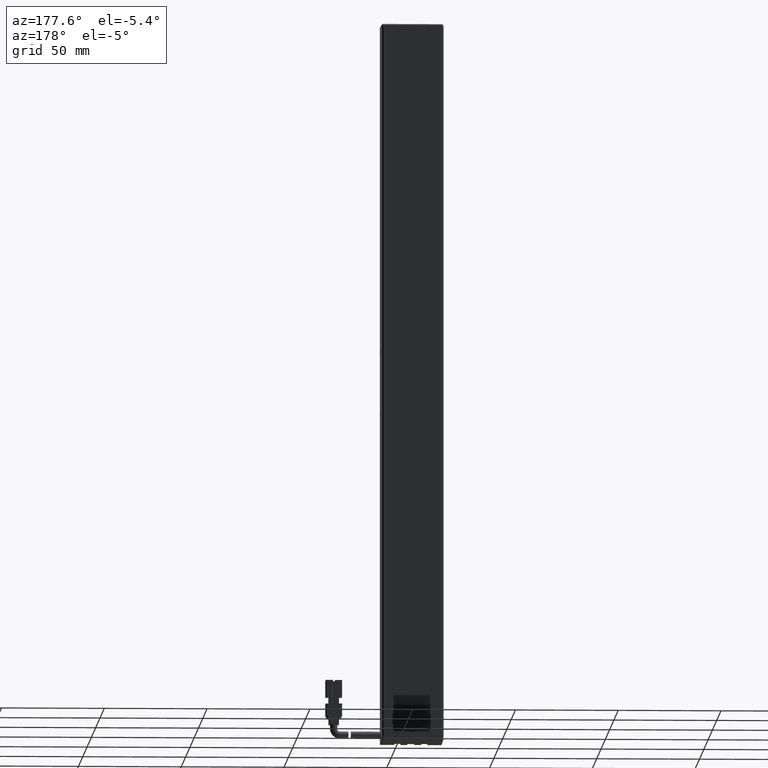
[diagram: clean part render]
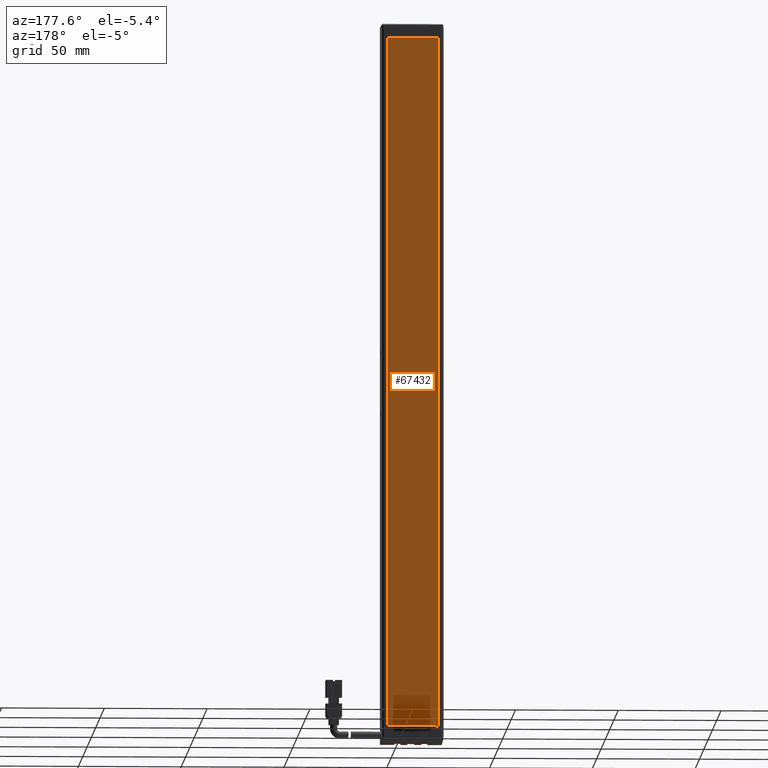
[diagram: same view with one face highlighted and labeled with its STEP entity id]
A machine part, auxiliary view. The second image highlights one B-rep face of the part: STEP entity #67432.
In plain terms, the highlighted planar face has unit normal (0, 1, 0).
Its self-contained STEP definition (entity closure, byte-faithful):
#402 = ORIENTED_EDGE ( 'NONE', *, *, #56121, .T. ) ;
#1696 = VECTOR ( 'NONE', #64540, 1000.000000000000000 ) ;
#1824 = AXIS2_PLACEMENT_3D ( 'NONE', #2077, #38380, #7234 ) ;
#2077 = CARTESIAN_POINT ( 'NONE',  ( 0.0000000000000000000, 34.29594479660387000, 0.0000000000000000000 ) ) ;
#7018 = PLANE ( 'NONE',  #1824 ) ;
#7234 = DIRECTION ( 'NONE',  ( 0.0000000000000000000, -0.0000000000000000000, 1.000000000000000000 ) ) ;
#11124 = CARTESIAN_POINT ( 'NONE',  ( 53.32537974683541600, 34.29594479660387000, -282.8499999999999100 ) ) ;
#11634 = VERTEX_POINT ( 'NONE', #35175 ) ;
#15226 = VERTEX_POINT ( 'NONE', #24093 ) ;
#15795 = VERTEX_POINT ( 'NONE', #35405 ) ;
#17952 = CARTESIAN_POINT ( 'NONE',  ( 28.52537974683541600, 34.29594479660387000, -282.8499999999999100 ) ) ;
#18808 = VECTOR ( 'NONE', #34099, 1000.000000000000000 ) ;
#24093 = CARTESIAN_POINT ( 'NONE',  ( 53.32537974683541600, 34.29594479660387000, 53.15000000000005500 ) ) ;
#24191 = DIRECTION ( 'NONE',  ( 1.000000000000000000, 0.0000000000000000000, 0.0000000000000000000 ) ) ;
#24829 = ORIENTED_EDGE ( 'NONE', *, *, #39572, .T. ) ;
#29030 = VERTEX_POINT ( 'NONE', #11124 ) ;
#31334 = VECTOR ( 'NONE', #24191, 1000.000000000000000 ) ;
#31581 = EDGE_CURVE ( 'NONE', #11634, #15795, #57121, .T. ) ;
#32516 = VECTOR ( 'NONE', #39411, 1000.000000000000000 ) ;
#32654 = LINE ( 'NONE', #54947, #18808 ) ;
#34099 = DIRECTION ( 'NONE',  ( -1.000000000000000000, 0.0000000000000000000, 0.0000000000000000000 ) ) ;
#34147 = LINE ( 'NONE', #49728, #32516 ) ;
#35175 = CARTESIAN_POINT ( 'NONE',  ( 28.52537974683541600, 34.29594479660387000, -282.8499999999999100 ) ) ;
#35405 = CARTESIAN_POINT ( 'NONE',  ( 28.52537974683541600, 34.29594479660387000, 53.15000000000005500 ) ) ;
#37789 = EDGE_CURVE ( 'NONE', #15226, #29030, #34147, .T. ) ;
#38380 = DIRECTION ( 'NONE',  ( 0.0000000000000000000, 1.000000000000000000, 0.0000000000000000000 ) ) ;
#39411 = DIRECTION ( 'NONE',  ( 0.0000000000000000000, 0.0000000000000000000, -1.000000000000000000 ) ) ;
#39572 = EDGE_CURVE ( 'NONE', #15795, #15226, #46815, .T. ) ;
#40377 = EDGE_LOOP ( 'NONE', ( #41866, #402, #44164, #24829 ) ) ;
#41866 = ORIENTED_EDGE ( 'NONE', *, *, #37789, .T. ) ;
#44164 = ORIENTED_EDGE ( 'NONE', *, *, #31581, .T. ) ;
#46815 = LINE ( 'NONE', #60700, #31334 ) ;
#49728 = CARTESIAN_POINT ( 'NONE',  ( 53.32537974683541600, 34.29594479660387000, 53.15000000000005500 ) ) ;
#54947 = CARTESIAN_POINT ( 'NONE',  ( 53.32537974683541600, 34.29594479660387000, -282.8499999999999100 ) ) ;
#55270 = FACE_OUTER_BOUND ( 'NONE', #40377, .T. ) ;
#56121 = EDGE_CURVE ( 'NONE', #29030, #11634, #32654, .T. ) ;
#57121 = LINE ( 'NONE', #17952, #1696 ) ;
#60700 = CARTESIAN_POINT ( 'NONE',  ( 28.52537974683541600, 34.29594479660387000, 53.15000000000005500 ) ) ;
#64540 = DIRECTION ( 'NONE',  ( 0.0000000000000000000, 0.0000000000000000000, 1.000000000000000000 ) ) ;
#67432 = ADVANCED_FACE ( 'NONE', ( #55270 ), #7018, .T. ) ;